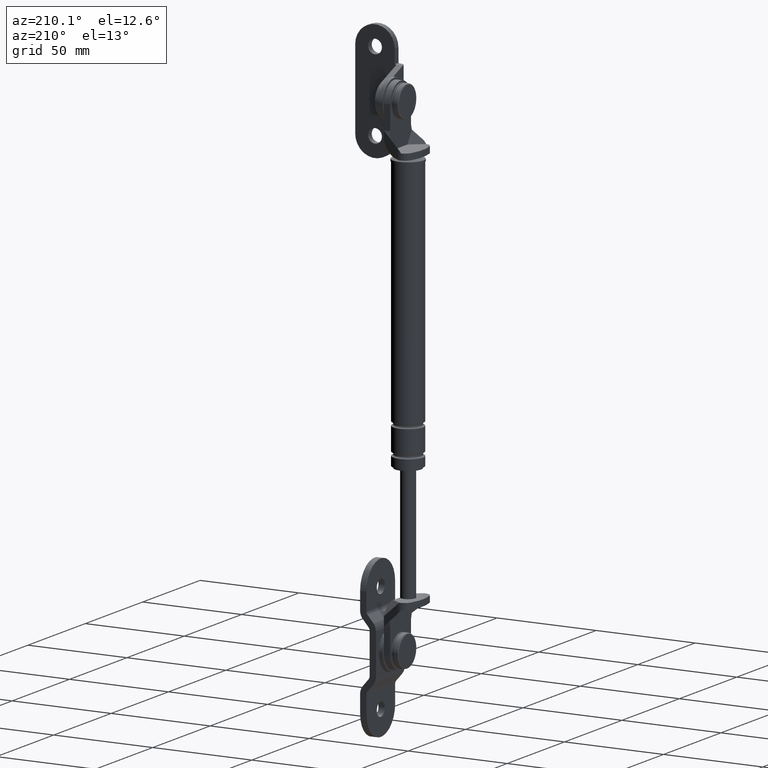
[diagram: clean part render]
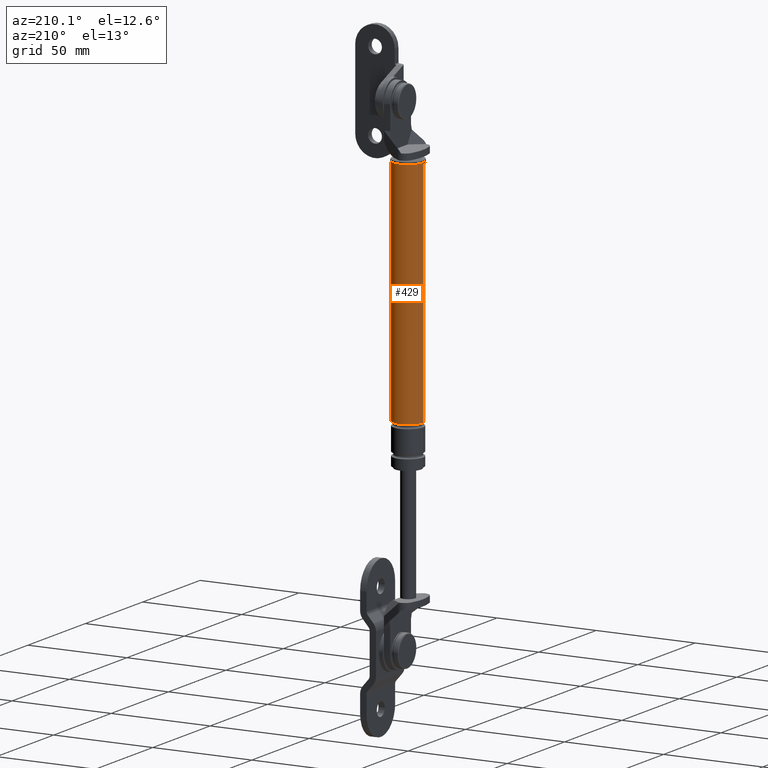
[diagram: same view with one face highlighted and labeled with its STEP entity id]
A machine part, auxiliary view. The second image highlights one B-rep face of the part: STEP entity #429.
In plain terms, the highlighted cylindrical surface (edge-blend (fillet) strip) has radius 7.5 mm, axis along (0, 0, 1).
Its self-contained STEP definition (entity closure, byte-faithful):
#429=ADVANCED_FACE('',(#1540),#1539,.T.);
#1539=CYLINDRICAL_SURFACE('',#2686,7.50000002618E+000);
#1540=FACE_OUTER_BOUND('',#2687,.T.);
#2683=CARTESIAN_POINT('',(0.00000000000E+000,0.00000000000E+000,0.00000000000E+000));
#2684=DIRECTION('',(-0.00000000000E+000,-0.00000000000E+000,1.00000000000E+000));
#2685=DIRECTION('',(1.00000000000E+000,0.00000000000E+000,0.00000000000E+000));
#2686=AXIS2_PLACEMENT_3D('',#2683,#2684,#2685);
#2687=EDGE_LOOP('',(#3502,#3503,#3504,#3505));
#3502=ORIENTED_EDGE('',*,*,#3916,.F.);
#3503=ORIENTED_EDGE('',*,*,#3962,.F.);
#3504=ORIENTED_EDGE('',*,*,#3963,.F.);
#3505=ORIENTED_EDGE('',*,*,#3964,.T.);
#3916=EDGE_CURVE('',#5530,#5529,#5537,.T.);
#3962=EDGE_CURVE('',#5835,#5530,#5836,.T.);
#3963=EDGE_CURVE('',#5842,#5835,#5843,.T.);
#3964=EDGE_CURVE('',#5842,#5529,#5849,.T.);
#5529=VERTEX_POINT('',#7319);
#5530=VERTEX_POINT('',#7320);
#5537=CIRCLE('',#7328,7.50000002618E+000);
#5835=VERTEX_POINT('',#7501);
#5836=(BOUNDED_CURVE() B_SPLINE_CURVE(1,(#7502,#7503),.UNSPECIFIED.,.F.,.F.) B_SPLINE_CURVE_WITH_KNOTS((2,2),(7.32600813727E-002,9.26739918579E-001),.UNSPECIFIED.) CURVE() GEOMETRIC_REPRESENTATION_ITEM() RATIONAL_B_SPLINE_CURVE((1.00000000000E+000,1.00000000000E+000)) REPRESENTATION_ITEM('') );
#5842=VERTEX_POINT('',#7504);
#5843=CIRCLE('',#7508,7.50000005236E+000);
#5849=(BOUNDED_CURVE() B_SPLINE_CURVE(1,(#7509,#7510),.UNSPECIFIED.,.F.,.F.) B_SPLINE_CURVE_WITH_KNOTS((2,2),(7.32600813106E-002,9.26739918689E-001),.UNSPECIFIED.) CURVE() GEOMETRIC_REPRESENTATION_ITEM() RATIONAL_B_SPLINE_CURVE((7.50000000000E-001,7.50000000000E-001)) REPRESENTATION_ITEM('') );
#7319=CARTESIAN_POINT('',(-7.50000002618E+000,0.00000000000E+000,8.64999850000E+001));
#7320=CARTESIAN_POINT('',(7.50000002618E+000,1.48029736617E-015,8.64999850000E+001));
#7325=CARTESIAN_POINT('',(0.00000000000E+000,0.00000000000E+000,8.64999850000E+001));
#7326=DIRECTION('',(0.00000000000E+000,0.00000000000E+000,1.00000000000E+000));
#7327=DIRECTION('',(-1.00000000000E+000,-1.22460635382E-016,0.00000000000E+000));
#7328=AXIS2_PLACEMENT_3D('',#7325,#7326,#7327);
#7501=CARTESIAN_POINT('',(7.50000005236E+000,8.88178419700E-016,-3.00000000000E+001));
#7502=CARTESIAN_POINT('',(7.50000002618E+000,0.00000000000E+000,-2.99999999915E+001));
#7503=CARTESIAN_POINT('',(7.50000002618E+000,0.00000000000E+000,8.64999849849E+001));
#7504=CARTESIAN_POINT('',(-7.50000005236E+000,0.00000000000E+000,-3.00000000000E+001));
#7505=CARTESIAN_POINT('',(0.00000000000E+000,0.00000000000E+000,-3.00000000000E+001));
#7506=DIRECTION('',(-0.00000000000E+000,0.00000000000E+000,-1.00000000000E+000));
#7507=DIRECTION('',(-1.00000000000E+000,-1.22460635382E-016,0.00000000000E+000));
#7508=AXIS2_PLACEMENT_3D('',#7505,#7506,#7507);
#7509=CARTESIAN_POINT('',(-7.50000002618E+000,0.00000000000E+000,-3.00000000000E+001));
#7510=CARTESIAN_POINT('',(-7.50000002618E+000,0.00000000000E+000,8.64999850000E+001));